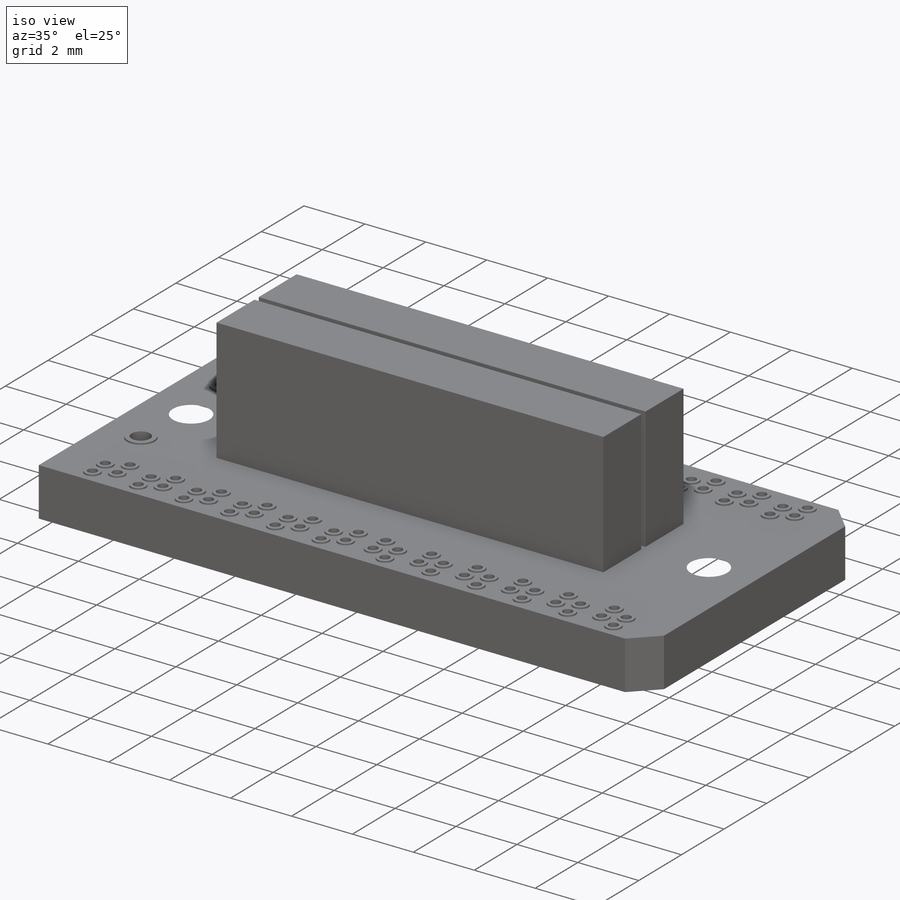
[diagram: iso view]
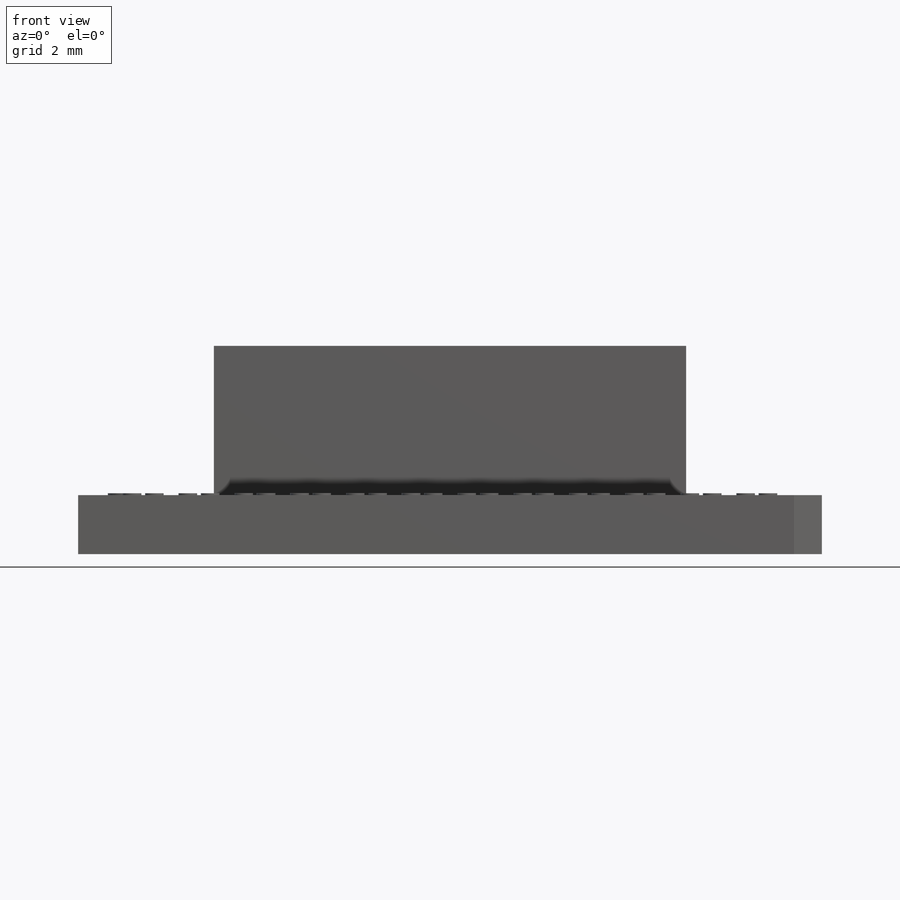
[diagram: front view]
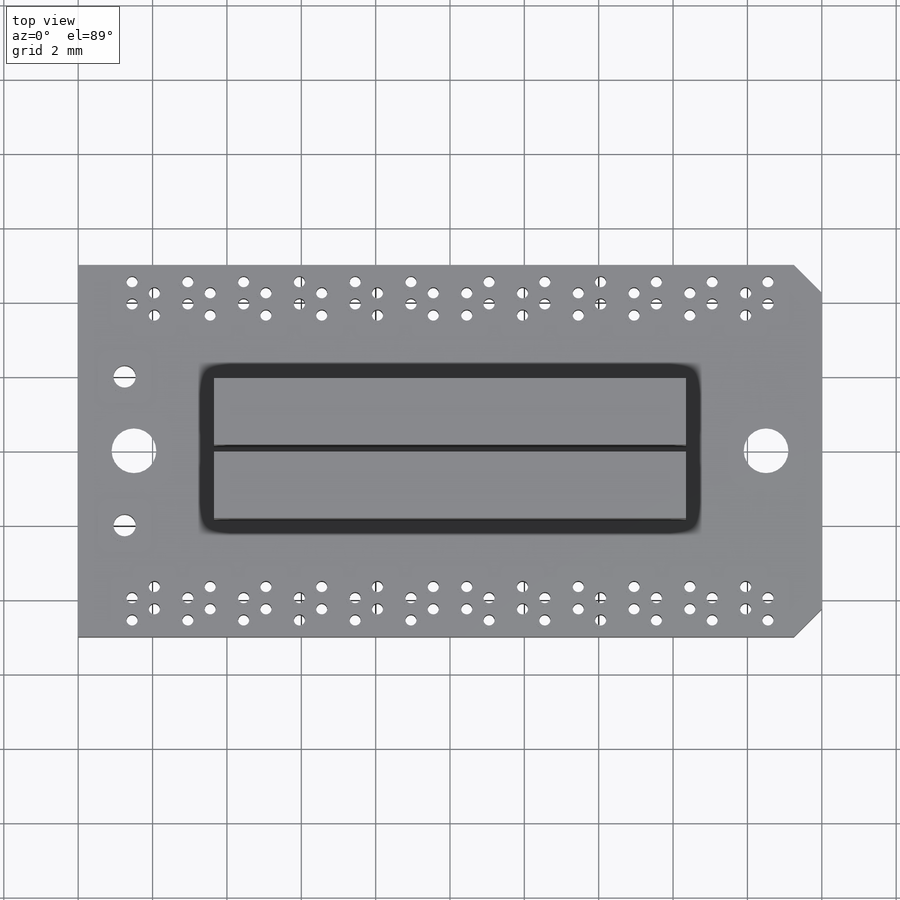
[diagram: top view]
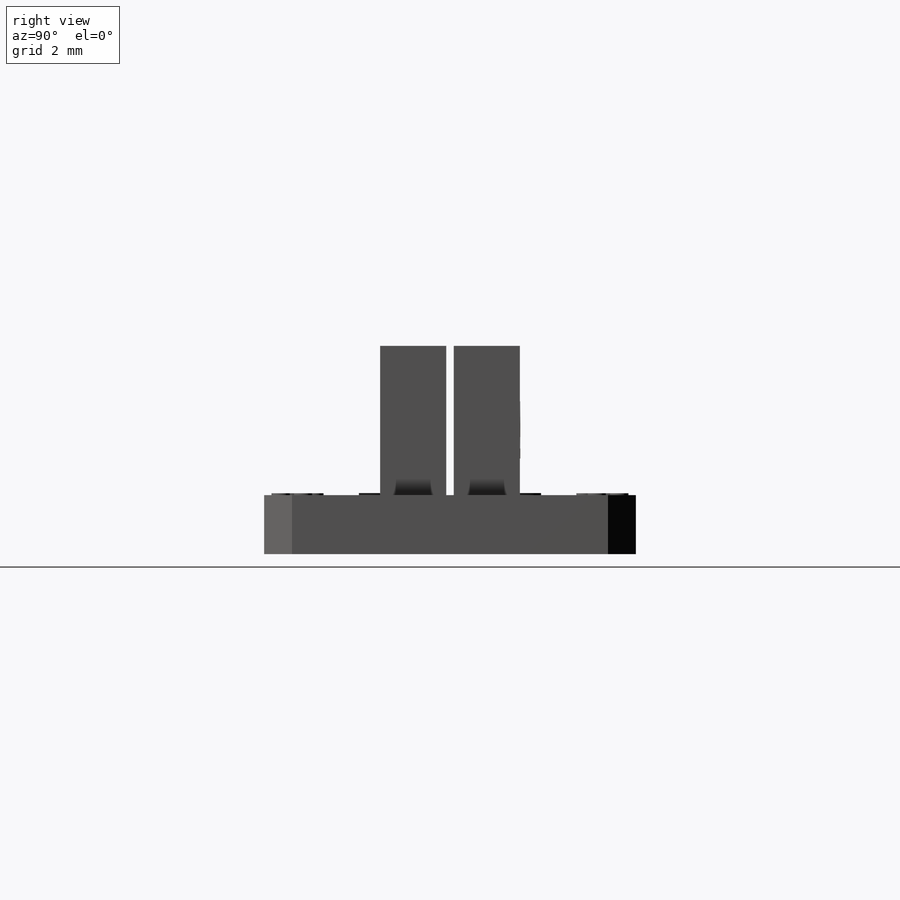
[diagram: right view]
SOLIDWORKS PART (.sldprt)
format: sldprt  version: not decoded by parser v0  size: 1,018,880 bytes
history: native  units: mm
features: sketch x8, extrude x5, mirror x3, cut_extrude x3, material x1, pattern_linear x1, chamfer x1 (+12 scaffold rows collapsed)
feature tree (34):
  scaffold x12  (default folders/planes/origin — collapsed)
  material  "Material <not specified>"
  sketch  "Sketch1"  dims[D1=20.0mm D2=10.0mm]
  extrude  "PCB"  Depth=1.5875mm
  sketch  "Sketch2"  dims[c1.D1=0.1mm c1.D2=1.778mm c1.D3=2.54mm c1.D4=0.1mm c1.D5=24.13mm c2.D1=12.7mm]
  extrude  "Connector"  Depth=4.0132mm
  mirror  "Mirror1"
  sketch  "Sketch3"  dims[c1.D1=~0.283195mm c1.D2=0.3mm c1.D3=0.3mm c1.D6=0.3mm c1.D7=0.3mm c2.D1=0.6mm c2.D4=0.6mm c2.D5=0.6mm c2.D8=0.45mm c2.D9=0.45mm]
  cut_extrude  "Cut-Extrude1"  [1 undecoded]
  sketch  "Sketch4"  dims[D1=0.1mm]
  extrude  "Boss-Extrude3"  Depth=0.05mm
  sketch  "Sketch5"  dims[D1=0.6mm D2=1.25mm D3=3.0mm]
  cut_extrude  "Cut-Extrude2"  [1 undecoded]
  sketch  "Sketch6"  dims[D1=0.15mm]
  extrude  "Boss-Extrude4"  Depth=0.05mm
  pattern_linear  "LPattern1"  Count1=6 Count2=1 Spacing1=1.5mm Spacing2=10mm
  mirror  "Mirror2"
  mirror  "Mirror3"
  chamfer  "Chamfer1"  Distance=0.75mm Angle=45deg
  sketch  "Sketch8"  dims[D1=1.0mm]
  extrude  "Boss-Extrude - Label"  Depth=0.01mm
  sketch  "Sketch9"  dims[D3=1.2mm D4=1.2mm D1=8.5mm D2=8.5mm]
  cut_extrude  "Cut-Extrude - Mounting Holes"  Depth=10mm
decode coverage: 16 of 21 modeling features carry decoded parameters
note: ~ marks probable driven/reference dimensions
note: 2 parameter values undecoded
note: suppression state not decoded; provenance and decode notes live in map.json
